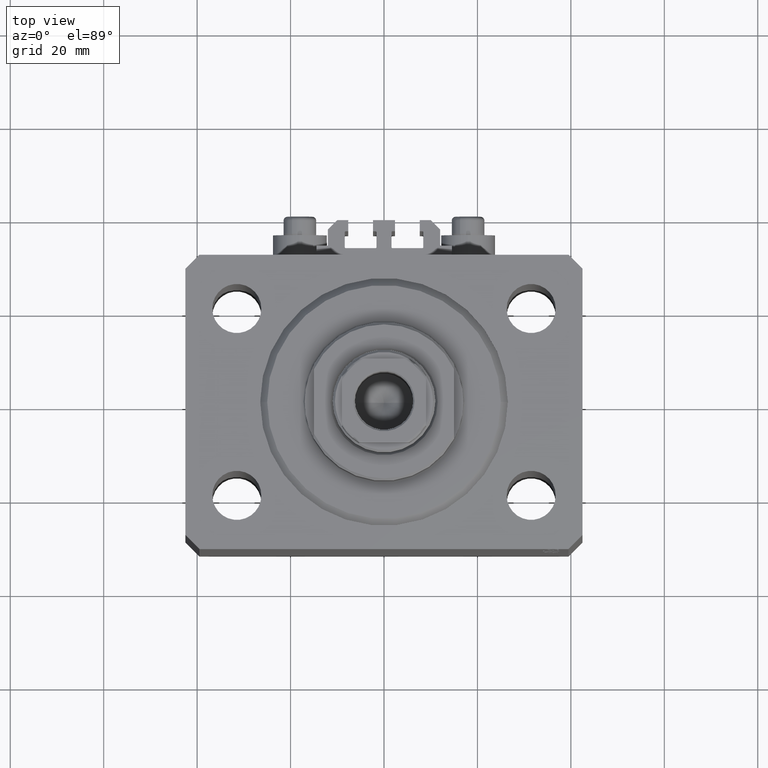
[diagram: clean part render]
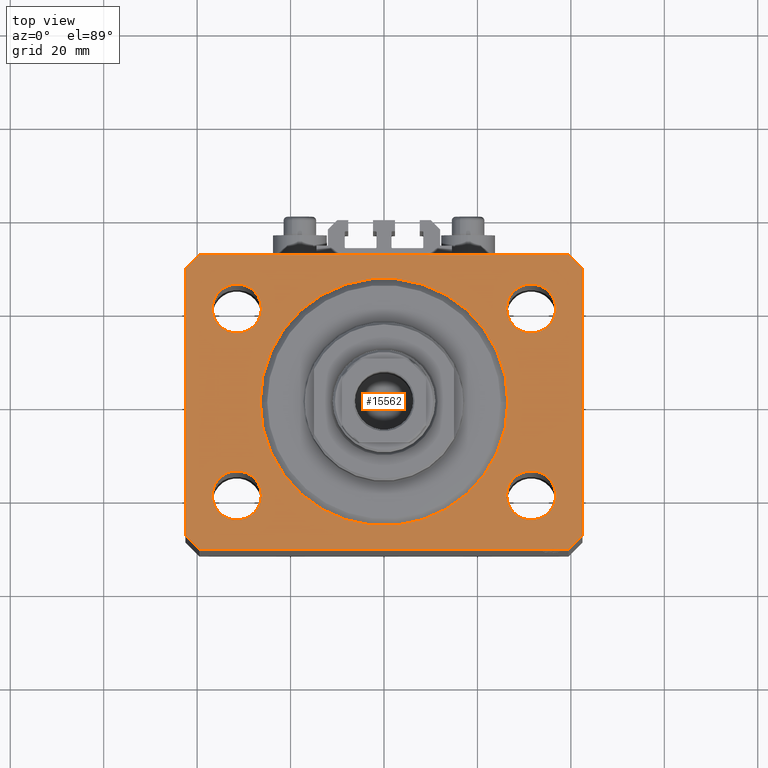
[diagram: same view with one face highlighted and labeled with its STEP entity id]
A machine part, top view. The second image highlights one B-rep face of the part: STEP entity #15562.
In plain terms, the highlighted planar face has unit normal (0, 0, 1).
Its self-contained STEP definition (entity closure, byte-faithful):
#394 = DIRECTION ( 'NONE',  ( 1.000000000000000000, 0.000000000000000000, 0.000000000000000000 ) ) ;
#1378 = LINE ( 'NONE', #41489, #18386 ) ;
#1424 = EDGE_CURVE ( 'NONE', #22385, #2909, #8437, .T. ) ;
#1537 = EDGE_CURVE ( 'NONE', #2909, #22385, #22113, .T. ) ;
#1912 = CARTESIAN_POINT ( 'NONE',  ( -26.24999999999999289, -20.00000000000000355, 0.000000000000000000 ) ) ;
#2471 = EDGE_LOOP ( 'NONE', ( #9895, #36421 ) ) ;
#2546 = EDGE_CURVE ( 'NONE', #32914, #19558, #10590, .T. ) ;
#2693 = DIRECTION ( 'NONE',  ( 0.000000000000000000, -1.000000000000000000, 0.000000000000000000 ) ) ;
#2909 = VERTEX_POINT ( 'NONE', #5280 ) ;
#3395 = DIRECTION ( 'NONE',  ( 0.000000000000000000, 0.000000000000000000, 1.000000000000000000 ) ) ;
#3497 = CARTESIAN_POINT ( 'NONE',  ( 42.50000000000000711, -28.50000000000000355, 0.000000000000000000 ) ) ;
#3726 = CARTESIAN_POINT ( 'NONE',  ( 0.000000000000000000, 0.000000000000000000, 0.000000000000000000 ) ) ;
#4151 = CARTESIAN_POINT ( 'NONE',  ( 42.50000000000051870, 28.49999999999995381, 0.000000000000000000 ) ) ;
#4332 = VERTEX_POINT ( 'NONE', #40484 ) ;
#4717 = EDGE_CURVE ( 'NONE', #12692, #32914, #42236, .T. ) ;
#4797 = CARTESIAN_POINT ( 'NONE',  ( 0.000000000000000000, 0.000000000000000000, 0.000000000000000000 ) ) ;
#5280 = CARTESIAN_POINT ( 'NONE',  ( -26.50000000000000355, 3.245314017740486554E-15, 0.000000000000000000 ) ) ;
#5485 = VERTEX_POINT ( 'NONE', #37288 ) ;
#5629 = EDGE_CURVE ( 'NONE', #32622, #10246, #23035, .T. ) ;
#6162 = ORIENTED_EDGE ( 'NONE', *, *, #23075, .F. ) ;
#6203 = CARTESIAN_POINT ( 'NONE',  ( 31.49999999999999289, -20.00000000000000355, 0.000000000000000000 ) ) ;
#6206 = EDGE_CURVE ( 'NONE', #19558, #36886, #9614, .T. ) ;
#6233 = EDGE_CURVE ( 'NONE', #4332, #5485, #38984, .T. ) ;
#6272 = DIRECTION ( 'NONE',  ( -1.000000000000000000, 8.783410004945795812E-17, 0.000000000000000000 ) ) ;
#6379 = EDGE_CURVE ( 'NONE', #28629, #36279, #34457, .T. ) ;
#7410 = DIRECTION ( 'NONE',  ( 0.000000000000000000, 0.000000000000000000, 1.000000000000000000 ) ) ;
#7984 = CARTESIAN_POINT ( 'NONE',  ( -42.50000000000000000, -28.50000000000000000, 0.000000000000000000 ) ) ;
#8437 = CIRCLE ( 'NONE', #28318, 26.50000000000000355 ) ;
#9077 = AXIS2_PLACEMENT_3D ( 'NONE', #28421, #7410, #21956 ) ;
#9466 = EDGE_CURVE ( 'NONE', #36886, #4332, #12440, .T. ) ;
#9614 = LINE ( 'NONE', #25112, #23782 ) ;
#9781 = DIRECTION ( 'NONE',  ( -0.7071067811865471286, -0.7071067811865479058, 0.000000000000000000 ) ) ;
#9895 = ORIENTED_EDGE ( 'NONE', *, *, #35119, .F. ) ;
#10246 = VERTEX_POINT ( 'NONE', #17472 ) ;
#10459 = VECTOR ( 'NONE', #11604, 1000.000000000000000 ) ;
#10590 = LINE ( 'NONE', #43794, #40468 ) ;
#10635 = LINE ( 'NONE', #29744, #10459 ) ;
#10730 = ORIENTED_EDGE ( 'NONE', *, *, #6379, .F. ) ;
#11026 = CARTESIAN_POINT ( 'NONE',  ( 31.49999999999999289, -20.00000000000000355, 0.000000000000000000 ) ) ;
#11477 = PLANE ( 'NONE',  #34069 ) ;
#11604 = DIRECTION ( 'NONE',  ( 0.7071067811865483499, 0.7071067811865466846, 0.000000000000000000 ) ) ;
#11757 = EDGE_LOOP ( 'NONE', ( #37011, #26322 ) ) ;
#12440 = LINE ( 'NONE', #37987, #29241 ) ;
#12525 = DIRECTION ( 'NONE',  ( 1.000000000000000000, 0.000000000000000000, 0.000000000000000000 ) ) ;
#12692 = VERTEX_POINT ( 'NONE', #3497 ) ;
#13487 = ORIENTED_EDGE ( 'NONE', *, *, #9466, .T. ) ;
#14067 = DIRECTION ( 'NONE',  ( 0.000000000000000000, 0.000000000000000000, 1.000000000000000000 ) ) ;
#14467 = DIRECTION ( 'NONE',  ( 0.000000000000000000, 0.000000000000000000, 1.000000000000000000 ) ) ;
#14536 = CIRCLE ( 'NONE', #30547, 5.250000000000000888 ) ;
#14964 = ORIENTED_EDGE ( 'NONE', *, *, #38445, .T. ) ;
#15540 = DIRECTION ( 'NONE',  ( 0.000000000000000000, 0.000000000000000000, 1.000000000000000000 ) ) ;
#15562 = ADVANCED_FACE ( 'NONE', ( #29866, #21974, #36784, #25569, #18390, #22930 ), #11477, .T. ) ;
#15615 = VERTEX_POINT ( 'NONE', #32963 ) ;
#16239 = EDGE_CURVE ( 'NONE', #44574, #12692, #10635, .T. ) ;
#16951 = EDGE_LOOP ( 'NONE', ( #24607, #13487, #46598, #19481, #14964, #45562, #18048, #34277 ) ) ;
#17472 = CARTESIAN_POINT ( 'NONE',  ( 36.74999999999999289, -20.00000000000000355, 0.000000000000000000 ) ) ;
#17753 = EDGE_LOOP ( 'NONE', ( #24711, #29755 ) ) ;
#18048 = ORIENTED_EDGE ( 'NONE', *, *, #4717, .T. ) ;
#18065 = AXIS2_PLACEMENT_3D ( 'NONE', #11026, #3395, #28707 ) ;
#18386 = VECTOR ( 'NONE', #37895, 1000.000000000000000 ) ;
#18390 = FACE_BOUND ( 'NONE', #2471, .T. ) ;
#19185 = AXIS2_PLACEMENT_3D ( 'NONE', #47010, #14067, #36497 ) ;
#19408 = EDGE_CURVE ( 'NONE', #25881, #19957, #27275, .T. ) ;
#19481 = ORIENTED_EDGE ( 'NONE', *, *, #39734, .T. ) ;
#19558 = VERTEX_POINT ( 'NONE', #19627 ) ;
#19627 = CARTESIAN_POINT ( 'NONE',  ( 39.50000000000056843, 31.49999999999999289, 0.000000000000000000 ) ) ;
#19922 = CIRCLE ( 'NONE', #19185, 5.250000000000000888 ) ;
#19957 = VERTEX_POINT ( 'NONE', #28831 ) ;
#20500 = DIRECTION ( 'NONE',  ( 8.886653596232072440E-15, 1.000000000000000000, 0.000000000000000000 ) ) ;
#21791 = DIRECTION ( 'NONE',  ( 1.000000000000000000, 0.000000000000000000, 0.000000000000000000 ) ) ;
#21799 = LINE ( 'NONE', #7984, #35185 ) ;
#21956 = DIRECTION ( 'NONE',  ( 1.000000000000000000, 0.000000000000000000, 0.000000000000000000 ) ) ;
#21974 = FACE_BOUND ( 'NONE', #47217, .T. ) ;
#22113 = CIRCLE ( 'NONE', #40544, 26.50000000000000355 ) ;
#22209 = ORIENTED_EDGE ( 'NONE', *, *, #19408, .F. ) ;
#22256 = CARTESIAN_POINT ( 'NONE',  ( -31.49999999999999289, -20.00000000000000355, 0.000000000000000000 ) ) ;
#22356 = CARTESIAN_POINT ( 'NONE',  ( 39.50000000000000711, -31.50000000000000000, 0.000000000000000000 ) ) ;
#22385 = VERTEX_POINT ( 'NONE', #36753 ) ;
#22499 = DIRECTION ( 'NONE',  ( 1.000000000000000000, 0.000000000000000000, 0.000000000000000000 ) ) ;
#22930 = FACE_OUTER_BOUND ( 'NONE', #16951, .T. ) ;
#22947 = CARTESIAN_POINT ( 'NONE',  ( -36.74999999999999289, -20.00000000000000355, 0.000000000000000000 ) ) ;
#23035 = CIRCLE ( 'NONE', #39805, 5.249999999999997335 ) ;
#23075 = EDGE_CURVE ( 'NONE', #36279, #28629, #29675, .T. ) ;
#23290 = DIRECTION ( 'NONE',  ( 1.000000000000000000, 0.000000000000000000, 0.000000000000000000 ) ) ;
#23782 = VECTOR ( 'NONE', #6272, 1000.000000000000000 ) ;
#24122 = DIRECTION ( 'NONE',  ( 0.000000000000000000, 0.000000000000000000, 1.000000000000000000 ) ) ;
#24586 = DIRECTION ( 'NONE',  ( 1.000000000000000000, 0.000000000000000000, 0.000000000000000000 ) ) ;
#24607 = ORIENTED_EDGE ( 'NONE', *, *, #6206, .T. ) ;
#24711 = ORIENTED_EDGE ( 'NONE', *, *, #1424, .F. ) ;
#25112 = CARTESIAN_POINT ( 'NONE',  ( 39.50000000000056843, 31.49999999999999289, 0.000000000000000000 ) ) ;
#25131 = DIRECTION ( 'NONE',  ( 0.000000000000000000, 0.000000000000000000, 1.000000000000000000 ) ) ;
#25154 = DIRECTION ( 'NONE',  ( -0.7071067811865364705, 0.7071067811865584529, 0.000000000000000000 ) ) ;
#25349 = AXIS2_PLACEMENT_3D ( 'NONE', #22256, #36331, #22499 ) ;
#25569 = FACE_BOUND ( 'NONE', #35666, .T. ) ;
#25881 = VERTEX_POINT ( 'NONE', #46660 ) ;
#26096 = VECTOR ( 'NONE', #2693, 1000.000000000000000 ) ;
#26179 = CARTESIAN_POINT ( 'NONE',  ( -39.50000000000000711, 31.50000000000000000, 0.000000000000000000 ) ) ;
#26322 = ORIENTED_EDGE ( 'NONE', *, *, #5629, .F. ) ;
#26759 = EDGE_CURVE ( 'NONE', #10246, #32622, #35615, .T. ) ;
#26952 = VERTEX_POINT ( 'NONE', #29543 ) ;
#27275 = CIRCLE ( 'NONE', #34132, 5.249999999999997335 ) ;
#28318 = AXIS2_PLACEMENT_3D ( 'NONE', #3726, #14467, #394 ) ;
#28421 = CARTESIAN_POINT ( 'NONE',  ( -31.49999999999999289, -20.00000000000000355, 0.000000000000000000 ) ) ;
#28424 = EDGE_CURVE ( 'NONE', #19957, #25881, #45545, .T. ) ;
#28629 = VERTEX_POINT ( 'NONE', #22947 ) ;
#28707 = DIRECTION ( 'NONE',  ( 1.000000000000000000, 0.000000000000000000, 0.000000000000000000 ) ) ;
#28831 = CARTESIAN_POINT ( 'NONE',  ( 26.25000000000000355, 19.99999999999999289, 0.000000000000000000 ) ) ;
#29241 = VECTOR ( 'NONE', #9781, 1000.000000000000000 ) ;
#29272 = CARTESIAN_POINT ( 'NONE',  ( -31.50000000000000000, 19.99999999999999645, 0.000000000000000000 ) ) ;
#29543 = CARTESIAN_POINT ( 'NONE',  ( -36.75000000000000000, 19.99999999999999645, 0.000000000000000000 ) ) ;
#29675 = CIRCLE ( 'NONE', #9077, 5.250000000000000888 ) ;
#29744 = CARTESIAN_POINT ( 'NONE',  ( 39.50000000000000711, -31.50000000000000000, 0.000000000000000000 ) ) ;
#29755 = ORIENTED_EDGE ( 'NONE', *, *, #1537, .F. ) ;
#29866 = FACE_BOUND ( 'NONE', #17753, .T. ) ;
#30108 = DIRECTION ( 'NONE',  ( 1.000000000000000000, 0.000000000000000000, -0.000000000000000000 ) ) ;
#30547 = AXIS2_PLACEMENT_3D ( 'NONE', #29272, #40970, #12525 ) ;
#32123 = VECTOR ( 'NONE', #20500, 1000.000000000000000 ) ;
#32479 = EDGE_CURVE ( 'NONE', #26952, #44537, #14536, .T. ) ;
#32622 = VERTEX_POINT ( 'NONE', #44790 ) ;
#32914 = VERTEX_POINT ( 'NONE', #4151 ) ;
#32963 = CARTESIAN_POINT ( 'NONE',  ( -39.50000000000000711, -31.50000000000000000, 0.000000000000000000 ) ) ;
#33019 = CARTESIAN_POINT ( 'NONE',  ( 31.50000000000000000, 19.99999999999999289, 0.000000000000000000 ) ) ;
#33909 = ORIENTED_EDGE ( 'NONE', *, *, #28424, .F. ) ;
#34069 = AXIS2_PLACEMENT_3D ( 'NONE', #4797, #15540, #30108 ) ;
#34132 = AXIS2_PLACEMENT_3D ( 'NONE', #33019, #25131, #21791 ) ;
#34277 = ORIENTED_EDGE ( 'NONE', *, *, #2546, .T. ) ;
#34457 = CIRCLE ( 'NONE', #25349, 5.250000000000000888 ) ;
#35119 = EDGE_CURVE ( 'NONE', #44537, #26952, #19922, .T. ) ;
#35185 = VECTOR ( 'NONE', #44507, 1000.000000000000000 ) ;
#35394 = CARTESIAN_POINT ( 'NONE',  ( -42.50000000000000000, 28.50000000000000000, 0.000000000000000000 ) ) ;
#35615 = CIRCLE ( 'NONE', #18065, 5.249999999999997335 ) ;
#35666 = EDGE_LOOP ( 'NONE', ( #22209, #33909 ) ) ;
#36279 = VERTEX_POINT ( 'NONE', #1912 ) ;
#36331 = DIRECTION ( 'NONE',  ( 0.000000000000000000, 0.000000000000000000, 1.000000000000000000 ) ) ;
#36421 = ORIENTED_EDGE ( 'NONE', *, *, #32479, .F. ) ;
#36497 = DIRECTION ( 'NONE',  ( 1.000000000000000000, 0.000000000000000000, 0.000000000000000000 ) ) ;
#36753 = CARTESIAN_POINT ( 'NONE',  ( 26.50000000000000355, 0.000000000000000000, 0.000000000000000000 ) ) ;
#36784 = FACE_BOUND ( 'NONE', #11757, .T. ) ;
#36886 = VERTEX_POINT ( 'NONE', #26179 ) ;
#37011 = ORIENTED_EDGE ( 'NONE', *, *, #26759, .F. ) ;
#37288 = CARTESIAN_POINT ( 'NONE',  ( -42.50000000000000000, -28.50000000000000000, 0.000000000000000000 ) ) ;
#37895 = DIRECTION ( 'NONE',  ( 1.000000000000000000, 0.000000000000000000, 0.000000000000000000 ) ) ;
#37987 = CARTESIAN_POINT ( 'NONE',  ( -39.50000000000000711, 31.50000000000000000, 0.000000000000000000 ) ) ;
#38079 = CARTESIAN_POINT ( 'NONE',  ( 0.000000000000000000, 0.000000000000000000, 0.000000000000000000 ) ) ;
#38445 = EDGE_CURVE ( 'NONE', #15615, #44574, #1378, .T. ) ;
#38984 = LINE ( 'NONE', #35394, #26096 ) ;
#39734 = EDGE_CURVE ( 'NONE', #5485, #15615, #21799, .T. ) ;
#39805 = AXIS2_PLACEMENT_3D ( 'NONE', #6203, #24122, #24586 ) ;
#40022 = CARTESIAN_POINT ( 'NONE',  ( -26.25000000000000000, 19.99999999999999645, 0.000000000000000000 ) ) ;
#40468 = VECTOR ( 'NONE', #25154, 1000.000000000000114 ) ;
#40484 = CARTESIAN_POINT ( 'NONE',  ( -42.50000000000000000, 28.50000000000000000, 0.000000000000000000 ) ) ;
#40544 = AXIS2_PLACEMENT_3D ( 'NONE', #38079, #41441, #23290 ) ;
#40970 = DIRECTION ( 'NONE',  ( 0.000000000000000000, 0.000000000000000000, 1.000000000000000000 ) ) ;
#41004 = AXIS2_PLACEMENT_3D ( 'NONE', #42542, #42084, #45660 ) ;
#41441 = DIRECTION ( 'NONE',  ( 0.000000000000000000, 0.000000000000000000, 1.000000000000000000 ) ) ;
#41489 = CARTESIAN_POINT ( 'NONE',  ( -39.50000000000000711, -31.50000000000000000, 0.000000000000000000 ) ) ;
#42084 = DIRECTION ( 'NONE',  ( 0.000000000000000000, 0.000000000000000000, 1.000000000000000000 ) ) ;
#42236 = LINE ( 'NONE', #45123, #32123 ) ;
#42542 = CARTESIAN_POINT ( 'NONE',  ( 31.50000000000000000, 19.99999999999999289, 0.000000000000000000 ) ) ;
#43794 = CARTESIAN_POINT ( 'NONE',  ( 42.50000000000051870, 28.49999999999995381, 0.000000000000000000 ) ) ;
#44507 = DIRECTION ( 'NONE',  ( 0.7071067811865471286, -0.7071067811865479058, 0.000000000000000000 ) ) ;
#44537 = VERTEX_POINT ( 'NONE', #40022 ) ;
#44574 = VERTEX_POINT ( 'NONE', #22356 ) ;
#44790 = CARTESIAN_POINT ( 'NONE',  ( 26.24999999999999645, -20.00000000000000355, 0.000000000000000000 ) ) ;
#45123 = CARTESIAN_POINT ( 'NONE',  ( 42.50000000000000711, -28.50000000000000355, 0.000000000000000000 ) ) ;
#45545 = CIRCLE ( 'NONE', #41004, 5.249999999999997335 ) ;
#45562 = ORIENTED_EDGE ( 'NONE', *, *, #16239, .T. ) ;
#45660 = DIRECTION ( 'NONE',  ( 1.000000000000000000, 0.000000000000000000, 0.000000000000000000 ) ) ;
#46598 = ORIENTED_EDGE ( 'NONE', *, *, #6233, .T. ) ;
#46660 = CARTESIAN_POINT ( 'NONE',  ( 36.75000000000000000, 19.99999999999999289, 0.000000000000000000 ) ) ;
#47010 = CARTESIAN_POINT ( 'NONE',  ( -31.50000000000000000, 19.99999999999999645, 0.000000000000000000 ) ) ;
#47217 = EDGE_LOOP ( 'NONE', ( #6162, #10730 ) ) ;